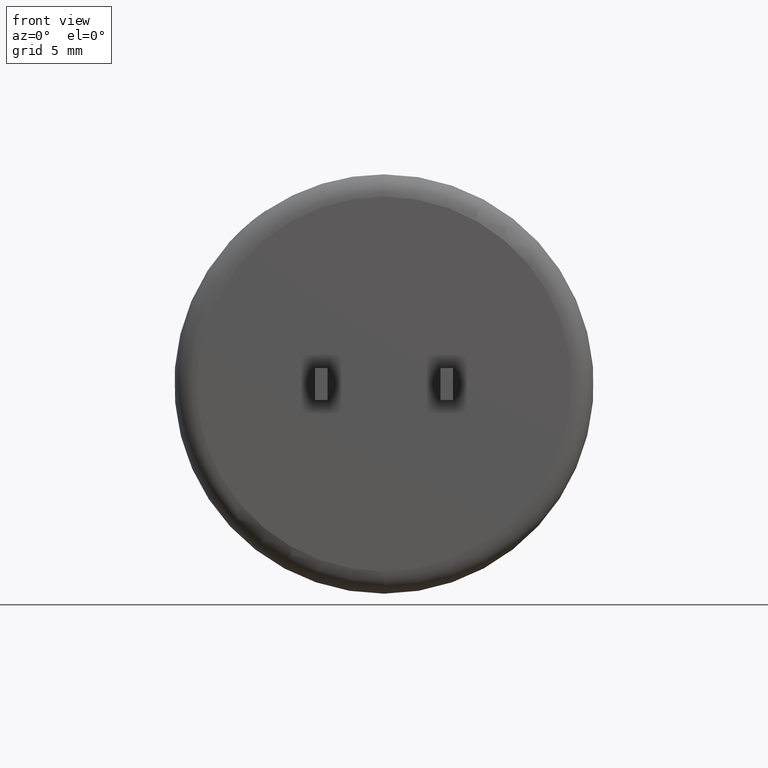
[diagram: clean part render]
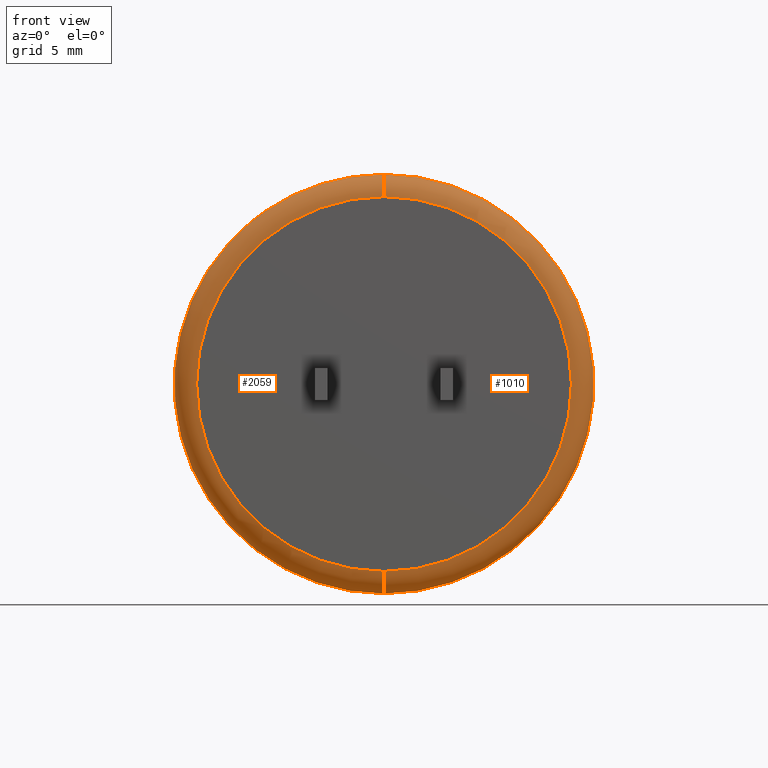
[diagram: same view with one multi-face feature highlighted, each face labeled with its STEP entity id]
A machine part, front view. The highlighted faces form ONE feature: a constant-radius fillet chain: 2 tangent blend faces with common blend radius 0.903 mm. The faces share edges in the B-rep.
Their STEP definitions:
[1] entity #1010 (Torus):
#137 = CARTESIAN_POINT ( 'NONE',  ( 9.856569762937473500E-016, 0.0000000000000000000, -7.597000000000000400 ) ) ;
#141 = DIRECTION ( 'NONE',  ( 1.000000000000000000, -0.0000000000000000000, 1.224646799147353200E-016 ) ) ;
#161 = AXIS2_PLACEMENT_3D ( 'NONE', #1067, #2378, #1669 ) ;
#294 = EDGE_LOOP ( 'NONE', ( #768, #1967, #2436, #1134 ) ) ;
#377 = TOROIDAL_SURFACE ( 'NONE', #161, 7.597000000000000400, 0.9030000000000000200 ) ;
#421 = AXIS2_PLACEMENT_3D ( 'NONE', #1356, #1111, #1347 ) ;
#515 = AXIS2_PLACEMENT_3D ( 'NONE', #1498, #2765, #2121 ) ;
#530 = AXIS2_PLACEMENT_3D ( 'NONE', #2755, #854, #844 ) ;
#552 = CARTESIAN_POINT ( 'NONE',  ( 9.303641733122443500E-016, 0.9029999999999992500, -7.597000000000000400 ) ) ;
#681 = EDGE_CURVE ( 'NONE', #1029, #1794, #2407, .T. ) ;
#768 = ORIENTED_EDGE ( 'NONE', *, *, #1602, .F. ) ;
#844 = DIRECTION ( 'NONE',  ( 0.0000000000000000000, 0.0000000000000000000, 1.000000000000000000 ) ) ;
#854 = DIRECTION ( 'NONE',  ( -1.000000000000000000, 0.0000000000000000000, 0.0000000000000000000 ) ) ;
#1010 = ADVANCED_FACE ( 'NONE', ( #1707 ), #377, .T. ) ;
#1029 = VERTEX_POINT ( 'NONE', #2353 ) ;
#1067 = CARTESIAN_POINT ( 'NONE',  ( 0.0000000000000000000, 0.9029999999999992500, 0.0000000000000000000 ) ) ;
#1111 = DIRECTION ( 'NONE',  ( 0.0000000000000000000, 1.000000000000000000, 0.0000000000000000000 ) ) ;
#1134 = ORIENTED_EDGE ( 'NONE', *, *, #1243, .F. ) ;
#1176 = CIRCLE ( 'NONE', #515, 7.597000000000000400 ) ;
#1200 = DIRECTION ( 'NONE',  ( 1.224646799147352500E-016, 0.0000000000000000000, -1.000000000000000000 ) ) ;
#1243 = EDGE_CURVE ( 'NONE', #2390, #1029, #2103, .T. ) ;
#1303 = CARTESIAN_POINT ( 'NONE',  ( 0.0000000000000000000, 0.0000000000000000000, 7.597000000000000400 ) ) ;
#1334 = AXIS2_PLACEMENT_3D ( 'NONE', #552, #141, #1200 ) ;
#1347 = DIRECTION ( 'NONE',  ( 0.0000000000000000000, 0.0000000000000000000, 1.000000000000000000 ) ) ;
#1356 = CARTESIAN_POINT ( 'NONE',  ( 0.0000000000000000000, 0.9029999999999992500, 0.0000000000000000000 ) ) ;
#1470 = EDGE_CURVE ( 'NONE', #1916, #1794, #2477, .T. ) ;
#1498 = CARTESIAN_POINT ( 'NONE',  ( 0.0000000000000000000, 0.0000000000000000000, 0.0000000000000000000 ) ) ;
#1602 = EDGE_CURVE ( 'NONE', #1916, #2390, #1176, .T. ) ;
#1669 = DIRECTION ( 'NONE',  ( 0.0000000000000000000, 0.0000000000000000000, 1.000000000000000000 ) ) ;
#1707 = FACE_OUTER_BOUND ( 'NONE', #294, .T. ) ;
#1794 = VERTEX_POINT ( 'NONE', #2228 ) ;
#1916 = VERTEX_POINT ( 'NONE', #137 ) ;
#1967 = ORIENTED_EDGE ( 'NONE', *, *, #1470, .T. ) ;
#2103 = CIRCLE ( 'NONE', #530, 0.9030000000000001400 ) ;
#2121 = DIRECTION ( 'NONE',  ( 0.0000000000000000000, 0.0000000000000000000, 1.000000000000000000 ) ) ;
#2228 = CARTESIAN_POINT ( 'NONE',  ( 0.0000000000000000000, 0.9029999999999992500, -8.500000000000000000 ) ) ;
#2353 = CARTESIAN_POINT ( 'NONE',  ( 1.040949779275250100E-015, 0.9029999999999992500, 8.500000000000000000 ) ) ;
#2378 = DIRECTION ( 'NONE',  ( 0.0000000000000000000, 1.000000000000000000, 0.0000000000000000000 ) ) ;
#2390 = VERTEX_POINT ( 'NONE', #1303 ) ;
#2407 = CIRCLE ( 'NONE', #421, 8.500000000000000000 ) ;
#2436 = ORIENTED_EDGE ( 'NONE', *, *, #681, .F. ) ;
#2477 = CIRCLE ( 'NONE', #1334, 0.9030000000000001400 ) ;
#2755 = CARTESIAN_POINT ( 'NONE',  ( 0.0000000000000000000, 0.9029999999999992500, 7.597000000000000400 ) ) ;
#2765 = DIRECTION ( 'NONE',  ( -0.0000000000000000000, -1.000000000000000000, -0.0000000000000000000 ) ) ;
[2] entity #2059 (Torus):
#16 = DIRECTION ( 'NONE',  ( 0.0000000000000000000, 1.000000000000000000, 0.0000000000000000000 ) ) ;
#38 = DIRECTION ( 'NONE',  ( 0.0000000000000000000, 1.000000000000000000, 0.0000000000000000000 ) ) ;
#65 = FACE_OUTER_BOUND ( 'NONE', #868, .T. ) ;
#137 = CARTESIAN_POINT ( 'NONE',  ( 9.856569762937473500E-016, 0.0000000000000000000, -7.597000000000000400 ) ) ;
#141 = DIRECTION ( 'NONE',  ( 1.000000000000000000, -0.0000000000000000000, 1.224646799147353200E-016 ) ) ;
#146 = CIRCLE ( 'NONE', #2438, 8.500000000000000000 ) ;
#209 = DIRECTION ( 'NONE',  ( 0.0000000000000000000, 0.0000000000000000000, 1.000000000000000000 ) ) ;
#236 = ORIENTED_EDGE ( 'NONE', *, *, #1470, .F. ) ;
#308 = CARTESIAN_POINT ( 'NONE',  ( -6.300684749941229500, 0.9029999999999992500, 5.705380940994039900 ) ) ;
#405 = CIRCLE ( 'NONE', #2590, 8.500000000000000000 ) ;
#412 = AXIS2_PLACEMENT_3D ( 'NONE', #1938, #1319, #209 ) ;
#429 = DIRECTION ( 'NONE',  ( 0.0000000000000000000, 0.0000000000000000000, 1.000000000000000000 ) ) ;
#449 = CARTESIAN_POINT ( 'NONE',  ( 0.0000000000000000000, 0.0000000000000000000, 0.0000000000000000000 ) ) ;
#530 = AXIS2_PLACEMENT_3D ( 'NONE', #2755, #854, #844 ) ;
#531 = DIRECTION ( 'NONE',  ( 0.0000000000000000000, 0.0000000000000000000, 1.000000000000000000 ) ) ;
#552 = CARTESIAN_POINT ( 'NONE',  ( 9.303641733122443500E-016, 0.9029999999999992500, -7.597000000000000400 ) ) ;
#640 = ORIENTED_EDGE ( 'NONE', *, *, #1084, .F. ) ;
#829 = ORIENTED_EDGE ( 'NONE', *, *, #1154, .F. ) ;
#835 = AXIS2_PLACEMENT_3D ( 'NONE', #2599, #38, #1537 ) ;
#844 = DIRECTION ( 'NONE',  ( 0.0000000000000000000, 0.0000000000000000000, 1.000000000000000000 ) ) ;
#854 = DIRECTION ( 'NONE',  ( -1.000000000000000000, 0.0000000000000000000, 0.0000000000000000000 ) ) ;
#868 = EDGE_LOOP ( 'NONE', ( #236, #2306, #1775, #829, #640, #2035 ) ) ;
#888 = CARTESIAN_POINT ( 'NONE',  ( 0.0000000000000000000, 0.9029999999999992500, 0.0000000000000000000 ) ) ;
#1029 = VERTEX_POINT ( 'NONE', #2353 ) ;
#1082 = AXIS2_PLACEMENT_3D ( 'NONE', #449, #2563, #429 ) ;
#1084 = EDGE_CURVE ( 'NONE', #1847, #1878, #146, .T. ) ;
#1098 = CIRCLE ( 'NONE', #1082, 7.597000000000000400 ) ;
#1154 = EDGE_CURVE ( 'NONE', #1878, #1029, #405, .T. ) ;
#1200 = DIRECTION ( 'NONE',  ( 1.224646799147352500E-016, 0.0000000000000000000, -1.000000000000000000 ) ) ;
#1243 = EDGE_CURVE ( 'NONE', #2390, #1029, #2103, .T. ) ;
#1303 = CARTESIAN_POINT ( 'NONE',  ( 0.0000000000000000000, 0.0000000000000000000, 7.597000000000000400 ) ) ;
#1319 = DIRECTION ( 'NONE',  ( 0.0000000000000000000, 1.000000000000000000, 0.0000000000000000000 ) ) ;
#1334 = AXIS2_PLACEMENT_3D ( 'NONE', #552, #141, #1200 ) ;
#1470 = EDGE_CURVE ( 'NONE', #1916, #1794, #2477, .T. ) ;
#1537 = DIRECTION ( 'NONE',  ( 0.0000000000000000000, 0.0000000000000000000, 1.000000000000000000 ) ) ;
#1581 = EDGE_CURVE ( 'NONE', #2390, #1916, #1098, .T. ) ;
#1607 = EDGE_CURVE ( 'NONE', #1794, #1847, #2511, .T. ) ;
#1769 = CARTESIAN_POINT ( 'NONE',  ( 0.0000000000000000000, 0.9029999999999992500, 0.0000000000000000000 ) ) ;
#1775 = ORIENTED_EDGE ( 'NONE', *, *, #1243, .T. ) ;
#1794 = VERTEX_POINT ( 'NONE', #2228 ) ;
#1847 = VERTEX_POINT ( 'NONE', #308 ) ;
#1864 = TOROIDAL_SURFACE ( 'NONE', #835, 7.597000000000000400, 0.9030000000000000200 ) ;
#1878 = VERTEX_POINT ( 'NONE', #2249 ) ;
#1916 = VERTEX_POINT ( 'NONE', #137 ) ;
#1938 = CARTESIAN_POINT ( 'NONE',  ( 0.0000000000000000000, 0.9029999999999992500, 0.0000000000000000000 ) ) ;
#2035 = ORIENTED_EDGE ( 'NONE', *, *, #1607, .F. ) ;
#2059 = ADVANCED_FACE ( 'NONE', ( #65 ), #1864, .T. ) ;
#2103 = CIRCLE ( 'NONE', #530, 0.9030000000000001400 ) ;
#2228 = CARTESIAN_POINT ( 'NONE',  ( 0.0000000000000000000, 0.9029999999999992500, -8.500000000000000000 ) ) ;
#2249 = CARTESIAN_POINT ( 'NONE',  ( -4.796984718136112500, 0.9029999999999992500, 7.017046217174901700 ) ) ;
#2306 = ORIENTED_EDGE ( 'NONE', *, *, #1581, .F. ) ;
#2353 = CARTESIAN_POINT ( 'NONE',  ( 1.040949779275250100E-015, 0.9029999999999992500, 8.500000000000000000 ) ) ;
#2366 = DIRECTION ( 'NONE',  ( 0.0000000000000000000, 0.0000000000000000000, 1.000000000000000000 ) ) ;
#2390 = VERTEX_POINT ( 'NONE', #1303 ) ;
#2438 = AXIS2_PLACEMENT_3D ( 'NONE', #888, #16, #2366 ) ;
#2477 = CIRCLE ( 'NONE', #1334, 0.9030000000000001400 ) ;
#2511 = CIRCLE ( 'NONE', #412, 8.500000000000000000 ) ;
#2563 = DIRECTION ( 'NONE',  ( -0.0000000000000000000, -1.000000000000000000, -0.0000000000000000000 ) ) ;
#2590 = AXIS2_PLACEMENT_3D ( 'NONE', #1769, #2664, #531 ) ;
#2599 = CARTESIAN_POINT ( 'NONE',  ( 0.0000000000000000000, 0.9029999999999992500, 0.0000000000000000000 ) ) ;
#2664 = DIRECTION ( 'NONE',  ( 0.0000000000000000000, 1.000000000000000000, 0.0000000000000000000 ) ) ;
#2755 = CARTESIAN_POINT ( 'NONE',  ( 0.0000000000000000000, 0.9029999999999992500, 7.597000000000000400 ) ) ;